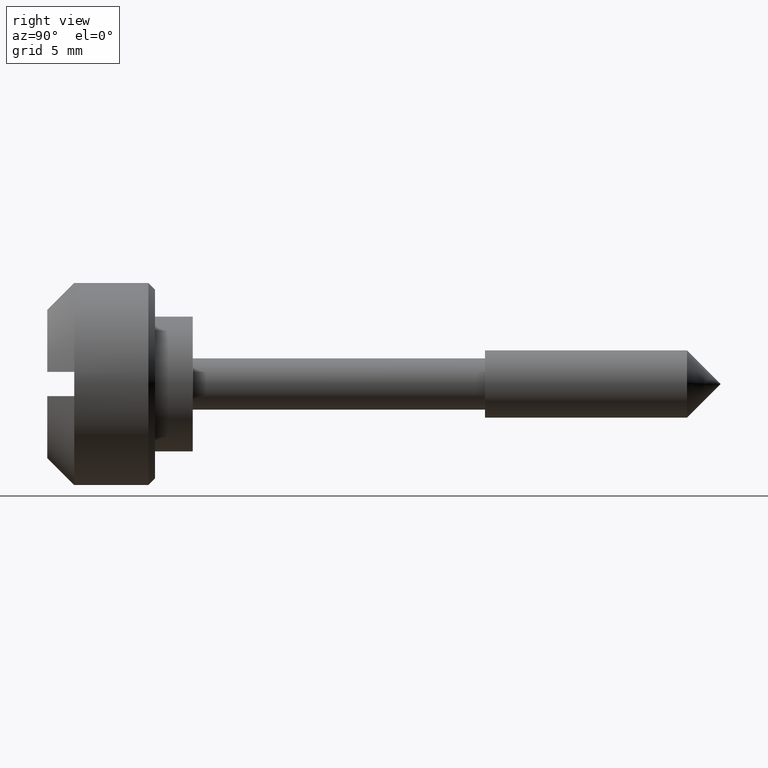
[diagram: clean part render]
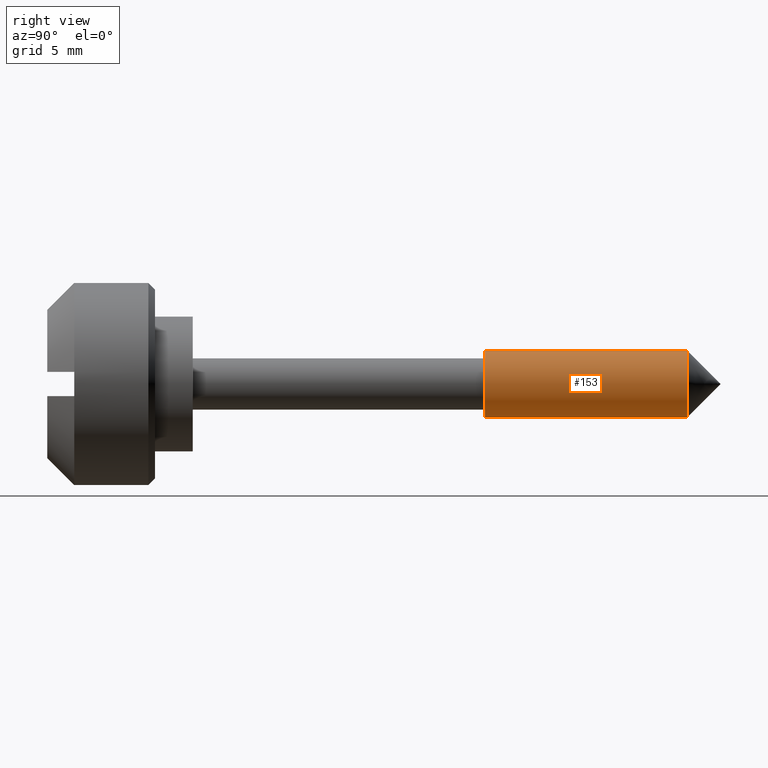
[diagram: same view with one face highlighted and labeled with its STEP entity id]
A machine part, right view. The second image highlights one B-rep face of the part: STEP entity #153.
In plain terms, the highlighted cylindrical surface (edge-blend (fillet) strip) has radius 2.5 mm, axis along (0, 1, 0).
Its self-contained STEP definition (entity closure, byte-faithful):
#153=ADVANCED_FACE('',(#570),#569,.T.);
#569=CYLINDRICAL_SURFACE('',#828,2.50000000000E+00);
#570=FACE_OUTER_BOUND('',#829,.T.);
#825=CARTESIAN_POINT('',(1.70000000000E+01,0.00000000000E+00,0.00000000000E+00));
#826=DIRECTION('',(1.00000000000E+00,-0.00000000000E+00,-0.00000000000E+00));
#827=DIRECTION('',(0.00000000000E+00,0.00000000000E+00,-1.00000000000E+00));
#828=AXIS2_PLACEMENT_3D('',#825,#826,#827);
#829=EDGE_LOOP('',(#1022,#1023,#1024,#1025));
#1022=ORIENTED_EDGE('',*,*,#1089,.F.);
#1023=ORIENTED_EDGE('',*,*,#1122,.T.);
#1024=ORIENTED_EDGE('',*,*,#1118,.T.);
#1025=ORIENTED_EDGE('',*,*,#1123,.F.);
#1089=EDGE_CURVE('',#1541,#1540,#1548,.T.);
#1118=EDGE_CURVE('',#1736,#1737,#1738,.T.);
#1122=EDGE_CURVE('',#1541,#1736,#1763,.T.);
#1123=EDGE_CURVE('',#1540,#1737,#1769,.T.);
#1540=VERTEX_POINT('',#2031);
#1541=VERTEX_POINT('',#2032);
#1548=CIRCLE('',#2040,2.50000000000E+00);
#1736=VERTEX_POINT('',#2147);
#1737=VERTEX_POINT('',#2148);
#1738=CIRCLE('',#2152,2.50000000000E+00);
#1763=(BOUNDED_CURVE() B_SPLINE_CURVE(1,(#2162,#2163),.UNSPECIFIED.,.F.,.F.) B_SPLINE_CURVE_WITH_KNOTS((2,2),(8.33333328360E-02,9.16666666871E-01),.UNSPECIFIED.) CURVE() GEOMETRIC_REPRESENTATION_ITEM() RATIONAL_B_SPLINE_CURVE((1.00000000000E+00,1.00000000000E+00)) REPRESENTATION_ITEM('') );
#1769=(BOUNDED_CURVE() B_SPLINE_CURVE(1,(#2164,#2165),.UNSPECIFIED.,.F.,.F.) B_SPLINE_CURVE_WITH_KNOTS((2,2),(8.33333333333E-02,9.16666666667E-01),.UNSPECIFIED.) CURVE() GEOMETRIC_REPRESENTATION_ITEM() RATIONAL_B_SPLINE_CURVE((7.50000000000E-01,7.50000000000E-01)) REPRESENTATION_ITEM('') );
#2031=CARTESIAN_POINT('',(2.25000000000E+01,0.00000000000E+00,2.50000000000E+00));
#2032=CARTESIAN_POINT('',(2.25000000000E+01,1.48029736617E-16,-2.50000000000E+00));
#2037=CARTESIAN_POINT('',(2.25000000000E+01,0.00000000000E+00,0.00000000000E+00));
#2038=DIRECTION('',(-1.00000000000E+00,0.00000000000E+00,0.00000000000E+00));
#2039=DIRECTION('',(0.00000000000E+00,-1.22460635382E-16,1.00000000000E+00));
#2040=AXIS2_PLACEMENT_3D('',#2037,#2038,#2039);
#2147=CARTESIAN_POINT('',(3.75000000000E+01,1.48029736617E-16,-2.50000000000E+00));
#2148=CARTESIAN_POINT('',(3.75000000000E+01,0.00000000000E+00,2.50000000000E+00));
#2149=CARTESIAN_POINT('',(3.75000000000E+01,0.00000000000E+00,0.00000000000E+00));
#2150=DIRECTION('',(-1.00000000000E+00,0.00000000000E+00,0.00000000000E+00));
#2151=DIRECTION('',(0.00000000000E+00,-1.22460635382E-16,1.00000000000E+00));
#2152=AXIS2_PLACEMENT_3D('',#2149,#2150,#2151);
#2162=CARTESIAN_POINT('',(2.24999999910E+01,0.00000000000E+00,-2.50000000000E+00));
#2163=CARTESIAN_POINT('',(3.75000000037E+01,0.00000000000E+00,-2.50000000000E+00));
#2164=CARTESIAN_POINT('',(2.25000000000E+01,-1.48029736617E-16,2.50000000000E+00));
#2165=CARTESIAN_POINT('',(3.75000000000E+01,-1.48029736617E-16,2.50000000000E+00));